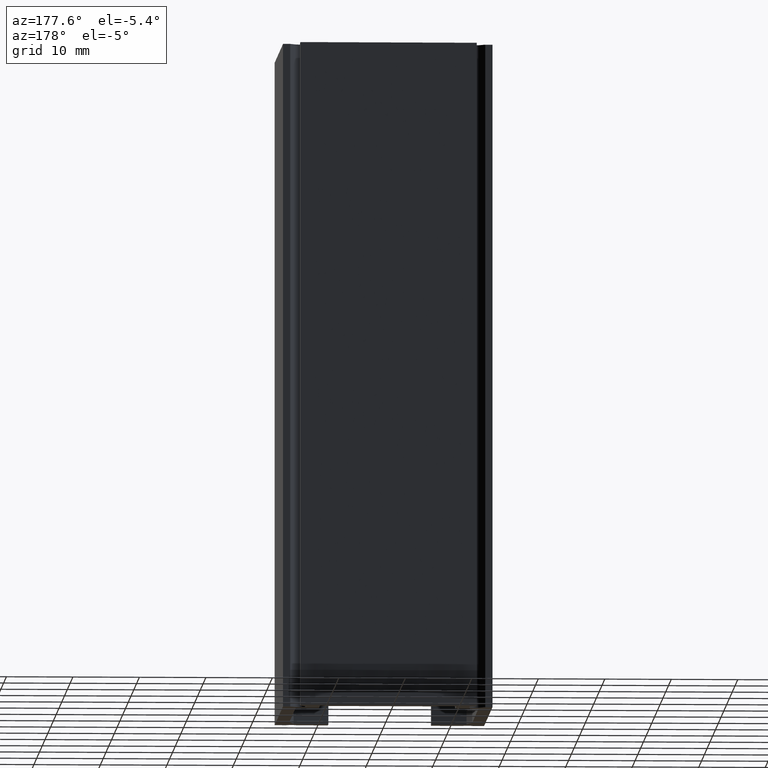
[diagram: clean part render]
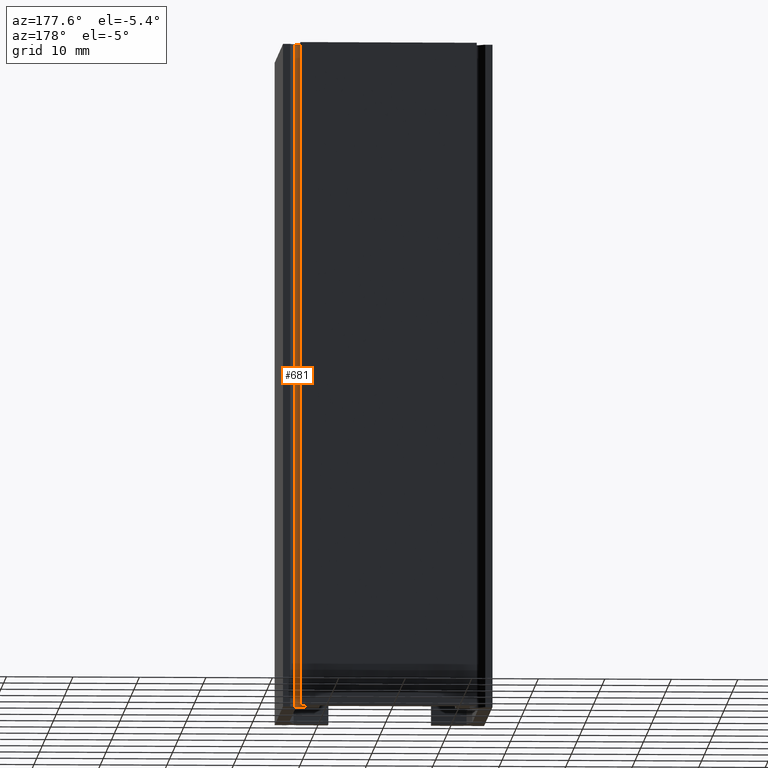
[diagram: same view with one face highlighted and labeled with its STEP entity id]
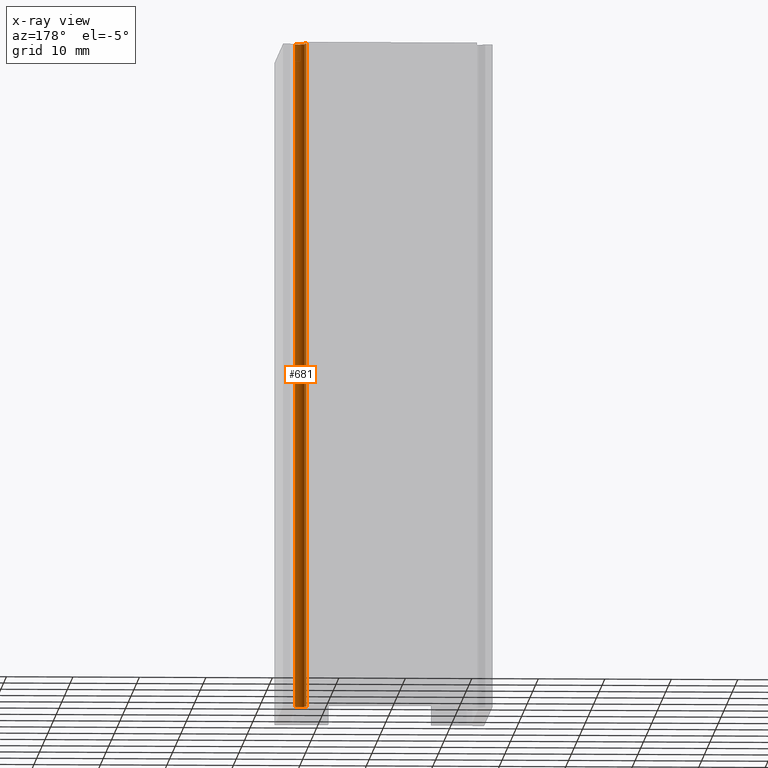
[diagram: x-ray of the same camera — body ghosted, the highlighted face saturated]
A machine part, auxiliary view. The second image highlights one B-rep face of the part: STEP entity #681.
The next image is the same camera in x-ray: the body ghosted, the highlighted face saturated — about 0% of this face is hidden behind the body in this view.
In plain terms, the highlighted cylindrical surface (edge-blend (fillet) strip) has radius 1 mm, axis along (0, 0, 1).
Its self-contained STEP definition (entity closure, byte-faithful):
#73=FACE_OUTER_BOUND('',#107,.T.);
#107=EDGE_LOOP('',(#597,#598,#599,#600));
#193=LINE('',#1103,#281);
#194=LINE('',#1107,#282);
#281=VECTOR('',#904,10.);
#282=VECTOR('',#909,10.);
#294=CIRCLE('',#720,0.999999999999847);
#296=CIRCLE('',#746,0.999999999999847);
#331=VERTEX_POINT('',#1003);
#332=VERTEX_POINT('',#1005);
#357=VERTEX_POINT('',#1101);
#358=VERTEX_POINT('',#1105);
#399=EDGE_CURVE('',#331,#332,#294,.T.);
#448=EDGE_CURVE('',#331,#357,#193,.T.);
#449=EDGE_CURVE('',#357,#358,#296,.T.);
#450=EDGE_CURVE('',#332,#358,#194,.T.);
#597=ORIENTED_EDGE('',*,*,#449,.T.);
#598=ORIENTED_EDGE('',*,*,#450,.F.);
#599=ORIENTED_EDGE('',*,*,#399,.F.);
#600=ORIENTED_EDGE('',*,*,#448,.T.);
#652=CYLINDRICAL_SURFACE('',#745,0.999999999999847);
#681=ADVANCED_FACE('',(#73),#652,.F.);
#720=AXIS2_PLACEMENT_3D('',#1006,#807,#808);
#745=AXIS2_PLACEMENT_3D('',#1104,#905,#906);
#746=AXIS2_PLACEMENT_3D('',#1106,#907,#908);
#807=DIRECTION('center_axis',(0.,0.,1.));
#808=DIRECTION('ref_axis',(0.707664656098444,-0.706548465789199,0.));
#904=DIRECTION('',(0.,0.,1.));
#905=DIRECTION('center_axis',(0.,0.,1.));
#906=DIRECTION('ref_axis',(0.707664656098444,-0.706548465789199,0.));
#907=DIRECTION('center_axis',(0.,0.,1.));
#908=DIRECTION('ref_axis',(0.707664656098444,-0.706548465789199,0.));
#909=DIRECTION('',(0.,0.,1.));
#1003=CARTESIAN_POINT('',(12.5429417765826,-2.29305831539735,0.));
#1005=CARTESIAN_POINT('',(13.9577132138676,-3.7067135623731,0.));
#1006=CARTESIAN_POINT('Origin',(13.2506064326811,-2.99960678118655,0.));
#1101=CARTESIAN_POINT('',(12.5429417765826,-2.29305831539735,100.));
#1103=CARTESIAN_POINT('',(12.5429417765826,-2.29305831539735,0.));
#1104=CARTESIAN_POINT('Origin',(13.2506064326811,-2.99960678118655,0.));
#1105=CARTESIAN_POINT('',(13.9577132138676,-3.7067135623731,100.));
#1106=CARTESIAN_POINT('Origin',(13.2506064326811,-2.99960678118655,100.));
#1107=CARTESIAN_POINT('',(13.9577132138676,-3.7067135623731,0.));